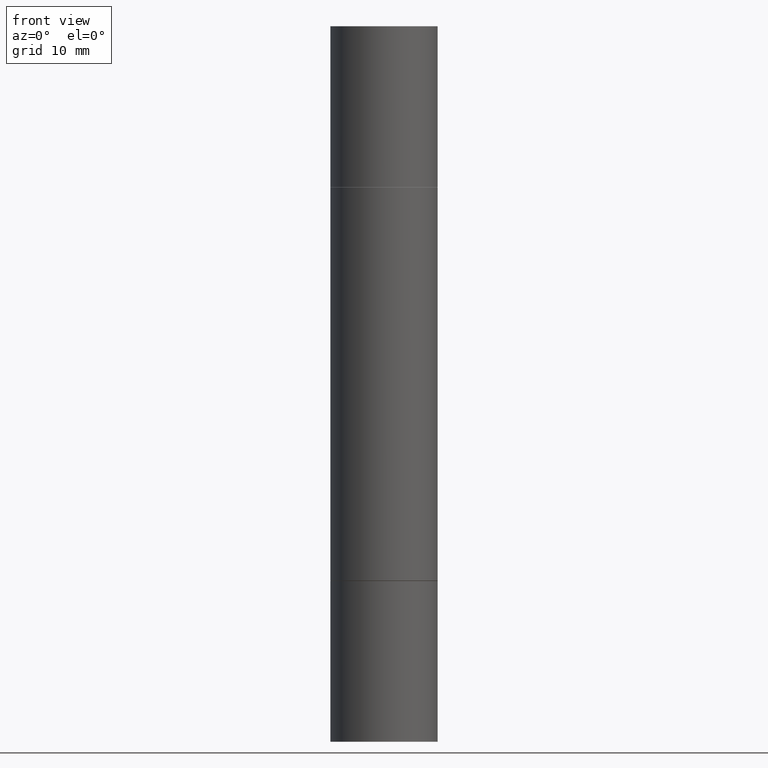
[diagram: clean part render]
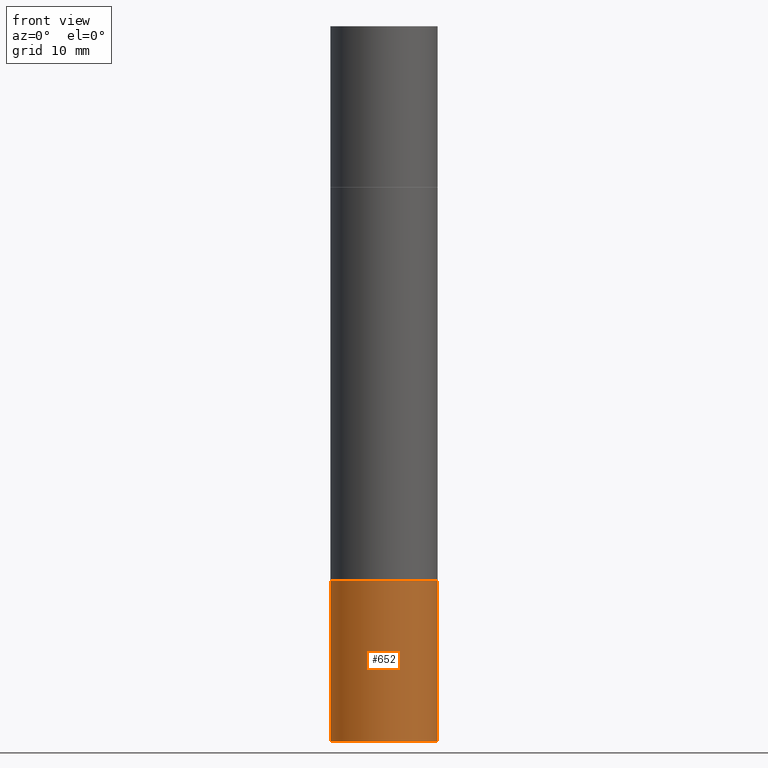
[diagram: same view with one face highlighted and labeled with its STEP entity id]
A machine part, front view. The second image highlights one B-rep face of the part: STEP entity #652.
In plain terms, the highlighted cylindrical surface (partial cylindrical patch) has radius 4.7625 mm, axis along (-0, 0, 1).
Its self-contained STEP definition (entity closure, byte-faithful):
#5 = CARTESIAN_POINT ( 'NONE',  ( 0.000000000000000000, 0.000000000000000000, 0.000000000000000000 ) ) ;
#13 = DIRECTION ( 'NONE',  ( -2.445468806185136597E-29, 3.491481338843145583E-15, 1.000000000000000000 ) ) ;
#49 = CYLINDRICAL_SURFACE ( 'NONE', #530, 0.1875000000000000278 ) ;
#87 = EDGE_CURVE ( 'NONE', #225, #400, #593, .T. ) ;
#122 = DIRECTION ( 'NONE',  ( -2.445468806185136877E-29, 3.491481338843145188E-15, 1.000000000000000000 ) ) ;
#128 = DIRECTION ( 'NONE',  ( 1.000000000000000000, -6.982962677686266711E-15, 0.000000000000000000 ) ) ;
#159 = CARTESIAN_POINT ( 'NONE',  ( 0.1875000000000000278, -1.309305502066175008E-15, 9.142831454617381013E-30 ) ) ;
#162 = VECTOR ( 'NONE', #122, 39.37007874015748143 ) ;
#172 = CARTESIAN_POINT ( 'NONE',  ( 6.113672015462842613E-29, -8.728703347107864943E-15, -2.500000000000000000 ) ) ;
#179 = CARTESIAN_POINT ( 'NONE',  ( -0.1875000000000000278, 1.332267629550188046E-15, -9.223003294227947991E-30 ) ) ;
#191 = EDGE_CURVE ( 'NONE', #225, #677, #658, .T. ) ;
#202 = LINE ( 'NONE', #159, #355 ) ;
#203 = DIRECTION ( 'NONE',  ( 1.000000000000000000, -6.982962677686266711E-15, 0.000000000000000000 ) ) ;
#215 = CARTESIAN_POINT ( 'NONE',  ( 4.739318546386794397E-29, -6.766490834678016045E-15, -1.937999999999999945 ) ) ;
#216 = VERTEX_POINT ( 'NONE', #595 ) ;
#218 = EDGE_LOOP ( 'NONE', ( #358, #404, #447, #673 ) ) ;
#225 = VERTEX_POINT ( 'NONE', #436 ) ;
#249 = AXIS2_PLACEMENT_3D ( 'NONE', #172, #13, #128 ) ;
#270 = AXIS2_PLACEMENT_3D ( 'NONE', #215, #570, #203 ) ;
#355 = VECTOR ( 'NONE', #460, 39.37007874015748143 ) ;
#358 = ORIENTED_EDGE ( 'NONE', *, *, #87, .F. ) ;
#369 = CARTESIAN_POINT ( 'NONE',  ( 0.1875000000000000278, -1.003800884917403995E-14, -2.500000000000000000 ) ) ;
#400 = VERTEX_POINT ( 'NONE', #558 ) ;
#404 = ORIENTED_EDGE ( 'NONE', *, *, #191, .T. ) ;
#436 = CARTESIAN_POINT ( 'NONE',  ( -0.1875000000000000278, -6.415329461342752645E-15, -2.500000000000000000 ) ) ;
#447 = ORIENTED_EDGE ( 'NONE', *, *, #584, .T. ) ;
#460 = DIRECTION ( 'NONE',  ( -2.445468806185136877E-29, 3.491481338843145188E-15, 1.000000000000000000 ) ) ;
#519 = FACE_OUTER_BOUND ( 'NONE', #218, .T. ) ;
#530 = AXIS2_PLACEMENT_3D ( 'NONE', #5, #633, #623 ) ;
#558 = CARTESIAN_POINT ( 'NONE',  ( -0.1875000000000000278, -6.415329461342752645E-15, -1.937999999999999945 ) ) ;
#563 = CIRCLE ( 'NONE', #270, 0.1875000000000000278 ) ;
#570 = DIRECTION ( 'NONE',  ( -2.445468806185136597E-29, 3.491481338843145583E-15, 1.000000000000000000 ) ) ;
#573 = EDGE_CURVE ( 'NONE', #400, #216, #563, .T. ) ;
#584 = EDGE_CURVE ( 'NONE', #677, #216, #202, .T. ) ;
#593 = LINE ( 'NONE', #179, #162 ) ;
#595 = CARTESIAN_POINT ( 'NONE',  ( 0.1875000000000000278, -8.075796336744191053E-15, -1.937999999999999945 ) ) ;
#623 = DIRECTION ( 'NONE',  ( 1.000000000000000000, -6.982962677686265922E-15, 4.876176775795935793E-29 ) ) ;
#633 = DIRECTION ( 'NONE',  ( -2.445468806185136597E-29, 3.491481338843145583E-15, 1.000000000000000000 ) ) ;
#652 = ADVANCED_FACE ( 'NONE', ( #519 ), #49, .T. ) ;
#658 = CIRCLE ( 'NONE', #249, 0.1875000000000000278 ) ;
#673 = ORIENTED_EDGE ( 'NONE', *, *, #573, .F. ) ;
#677 = VERTEX_POINT ( 'NONE', #369 ) ;